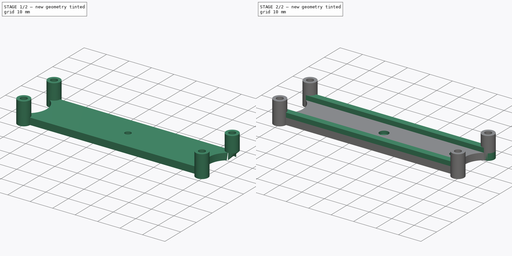
[diagram: build sequence overview — one tinted view per stage of 2, left to right]
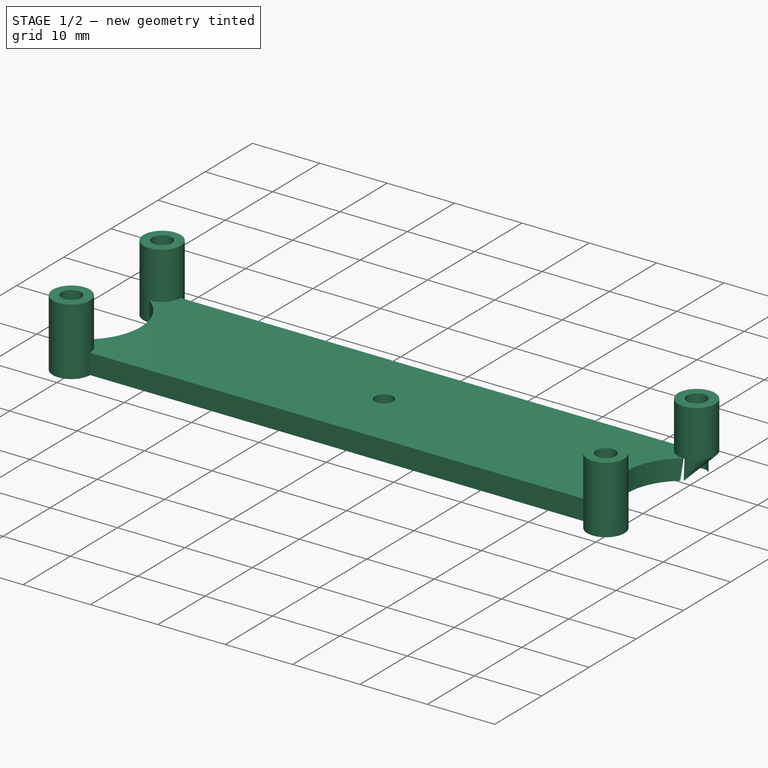
[diagram: stage 1 of 2 — iso view after this stage's code; geometry added in this stage tinted green]
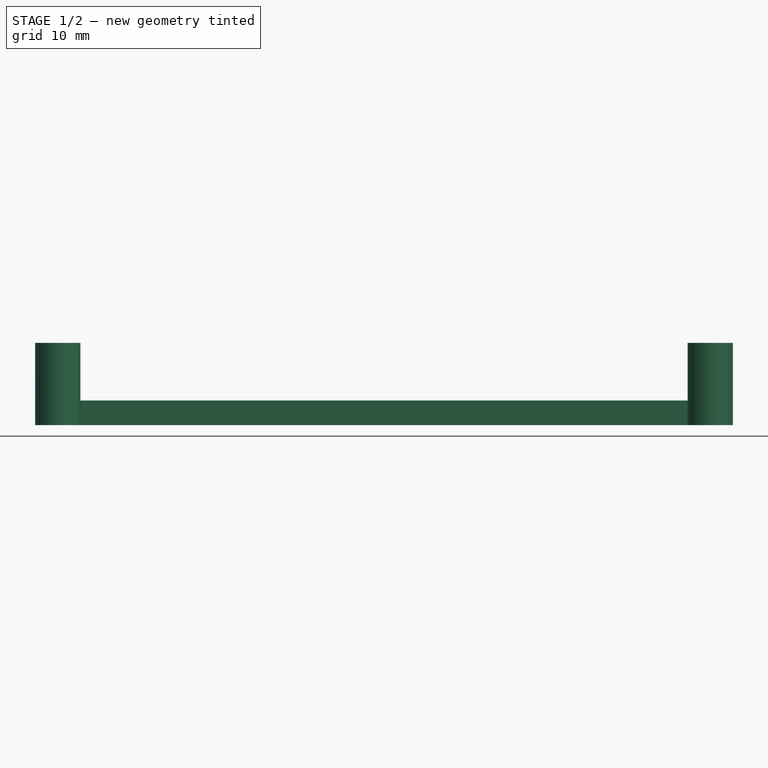
[diagram: stage 1 of 2 — front view after this stage's code; geometry added in this stage tinted green]
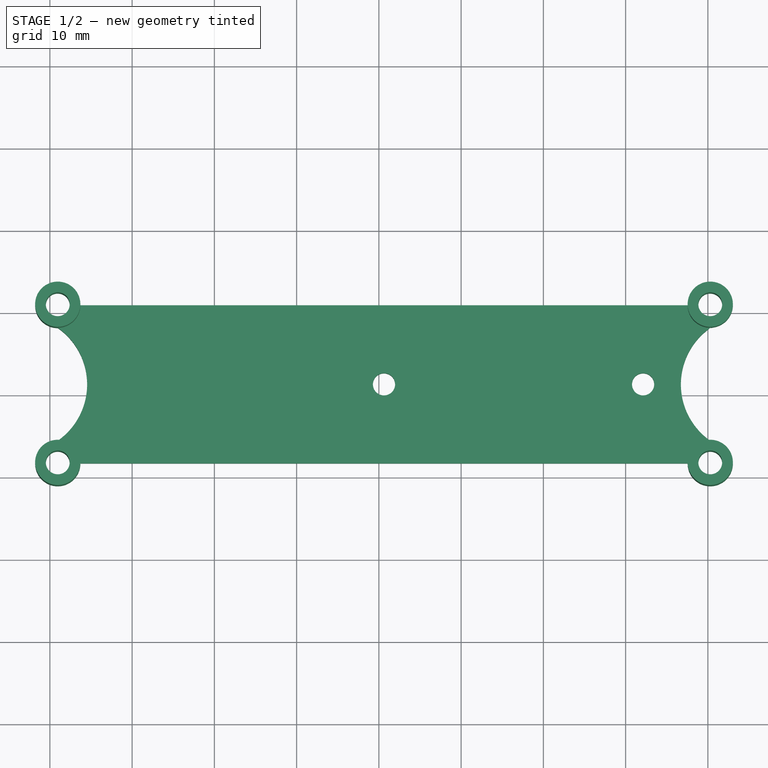
[diagram: stage 1 of 2 — top view after this stage's code; geometry added in this stage tinted green]
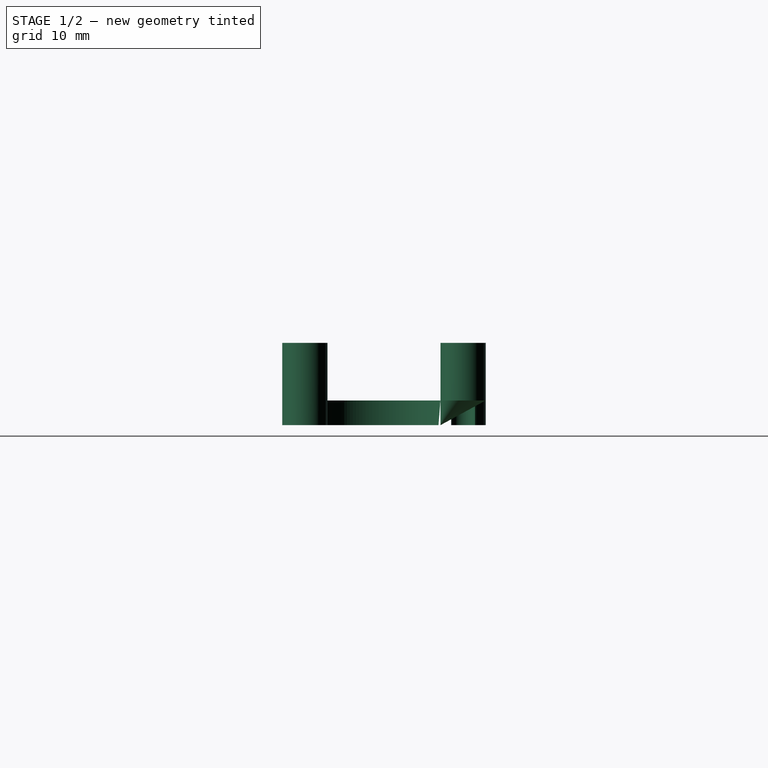
[diagram: stage 1 of 2 — right view after this stage's code; geometry added in this stage tinted green]
FCSTD DOCUMENT  (FreeCAD 0.19R24291 (Git))
Label: U2C Din Mount
License: All rights reserved
LicenseURL: http://en.wikipedia.org/wiki/All_rights_reserved
objects: Sketcher::SketchObject×4, PartDesign::Pad×3, Part::Feature×1, PartDesign::ShapeBinder×1, PartDesign::Pocket×1, PartDesign::Body×1
note: 15 computed .brp shape members not serialized (recipe doc carries the construction recipe); baked Part::Feature solids carry a one-line shape summary decoded from their .brp

FEATURE [Part::Feature] Part__Feature  label="U2C Mounting Universal"
  shape: bbox 84.83 x 26.46 x 10 mm, 97 faces (baked)
FEATURE [PartDesign::ShapeBinder] ShapeBinder
  Support = -> [Part__Feature]
  TraceSupport = false
FEATURE [Sketcher::SketchObject] Sketch
  ExternalGeometry = -> [ShapeBinder]
  FullyConstrained = true
  MapMode = 5
  Support = -> [XY_Plane]
  sketch-geometry (14):
    g0: Circle CenterX=-49.042 CenterY=40.9414 CenterZ=0 NormalX=0 NormalY=0 NormalZ=1 AngleXU=0 Radius=1.45
    g1: Circle CenterX=-49.042 CenterY=21.7114 CenterZ=0 NormalX=0 NormalY=0 NormalZ=1 AngleXU=0 Radius=1.45
    g2: Circle CenterX=30.288 CenterY=40.9414 CenterZ=0 NormalX=0 NormalY=0 NormalZ=1 AngleXU=0 Radius=1.45
    g3: Circle CenterX=30.288 CenterY=21.7114 CenterZ=0 NormalX=0 NormalY=0 NormalZ=1 AngleXU=0 Radius=1.45
    g4: ArcOfCircle CenterX=-49.042 CenterY=40.9414 CenterZ=0 NormalX=0 NormalY=0 NormalZ=1 AngleXU=0 Radius=2.75 StartAngle=1.3e-15 EndAngle=4.71239
    g5: Circle CenterX=-9.37698 CenterY=31.3264 CenterZ=0 NormalX=0 NormalY=0 NormalZ=1 AngleXU=0 Radius=1.35
    g6: Circle CenterX=22.123 CenterY=31.3264 CenterZ=0 NormalX=0 NormalY=0 NormalZ=1 AngleXU=0 Radius=1.35
    g7: ArcOfCircle CenterX=-49.042 CenterY=21.7114 CenterZ=0 NormalX=0 NormalY=0 NormalZ=1 AngleXU=0 Radius=2.75 StartAngle=1.5708 EndAngle=6.28319
    g8: ArcOfCircle CenterX=30.288 CenterY=21.7114 CenterZ=0 NormalX=0 NormalY=0 NormalZ=1 AngleXU=0 Radius=2.75 StartAngle=3.14159 EndAngle=7.85398
    g9: ArcOfCircle CenterX=30.288 CenterY=40.9414 CenterZ=0 NormalX=0 NormalY=0 NormalZ=1 AngleXU=0 Radius=2.75 StartAngle=4.71239 EndAngle=9.42478
    g10: ArcOfCircle CenterX=-53.8489 CenterY=31.3264 CenterZ=0 NormalX=0 NormalY=0 NormalZ=1 AngleXU=0 Radius=8.38062 StartAngle=5.32325 EndAngle=7.24312
    g11: ArcOfCircle CenterX=35.0949 CenterY=31.3264 CenterZ=0 NormalX=0 NormalY=0 NormalZ=1 AngleXU=0 Radius=8.38062 StartAngle=2.18166 EndAngle=4.10152
    g12: LineSegment StartX=-46.292 StartY=40.9414 StartZ=0 EndX=27.538 EndY=40.9414 EndZ=0
    g13: LineSegment StartX=27.538 StartY=21.7114 StartZ=0 EndX=-46.292 EndY=21.7114 EndZ=0
  constraints (34):
    c: Coincident(g0,g-3)
    c: PointOnObject(g-3,g0)
    c: Coincident(g1,g-4)
    c: PointOnObject(g-4,g1)
    c: Coincident(g2,g-7)
    c: PointOnObject(g-7,g2)
    c: Coincident(g3,g-8)
    c: PointOnObject(g-8,g3)
    c: Coincident(g4,g0)
    c: Coincident(g4,g-9)
    c: Angle(g4) = 4.71239
    c: Coincident(g5,g-5)
    c: PointOnObject(g-5,g5)
    c: Coincident(g6,g-6)
    c: PointOnObject(g-6,g6)
    c: Coincident(g7,g1)
    c: Coincident(g7,g-10)
    c: Coincident(g8,g3)
    c: Coincident(g8,g-11)
    c: Coincident(g9,g2)
    c: Coincident(g9,g-12)
    c: Angle(g7) = 4.71239
    c: Angle(g8) = 4.71239
    c: Angle(g9) = 4.71239
    c: Coincident(g10,g4)
    c: Coincident(g10,g7)
    c: Coincident(g11,g9)
    c: Coincident(g11,g8)
    c: Angle(g10) = 1.91986
    c: Angle(g11) = 1.91986
    c: Coincident(g12,g4)
    c: Coincident(g12,g9)
    c: Coincident(g13,g8)
    c: Coincident(g13,g7)
FEATURE [PartDesign::Pad] Pad
  Direction = (1,1,1)
  Length = 3
  Length2 = 100
  Profile = -> Sketch
  Type = 0
FEATURE [Sketcher::SketchObject] Sketch001
  ExternalGeometry = -> [ShapeBinder,Pad]
  FullyConstrained = true
  MapMode = 5
  Placement = pos=(0,0,3) rot=(0,0,1;0rad)
  Support = -> [Pad]
  sketch-geometry (8):
    g0: Circle CenterX=-49.042 CenterY=40.9414 CenterZ=0 NormalX=0 NormalY=0 NormalZ=1 AngleXU=0 Radius=2.75
    g1: Circle CenterX=-49.042 CenterY=21.7114 CenterZ=0 NormalX=0 NormalY=0 NormalZ=1 AngleXU=0 Radius=2.75
    g2: Circle CenterX=30.288 CenterY=40.9414 CenterZ=0 NormalX=0 NormalY=0 NormalZ=1 AngleXU=0 Radius=2.75
    g3: Circle CenterX=30.288 CenterY=21.7114 CenterZ=0 NormalX=0 NormalY=0 NormalZ=1 AngleXU=0 Radius=2.75
    g4: Circle CenterX=30.288 CenterY=21.7114 CenterZ=0 NormalX=0 NormalY=0 NormalZ=1 AngleXU=0 Radius=1.45
    g5: Circle CenterX=30.288 CenterY=40.9414 CenterZ=0 NormalX=0 NormalY=0 NormalZ=1 AngleXU=0 Radius=1.45
    g6: Circle CenterX=-49.042 CenterY=40.9414 CenterZ=0 NormalX=0 NormalY=0 NormalZ=1 AngleXU=0 Radius=1.45
    g7: Circle CenterX=-49.042 CenterY=21.7114 CenterZ=0 NormalX=0 NormalY=0 NormalZ=1 AngleXU=0 Radius=1.45
  constraints (16):
    c: Coincident(g0,g-4)
    c: PointOnObject(g-4,g0)
    c: Coincident(g1,g-6)
    c: PointOnObject(g-6,g1)
    c: Coincident(g2,g-10)
    c: PointOnObject(g-10,g2)
    c: Coincident(g3,g-8)
    c: PointOnObject(g-8,g3)
    c: Coincident(g4,g3)
    c: PointOnObject(g-7,g4)
    c: Coincident(g5,g2)
    c: PointOnObject(g-9,g5)
    c: Coincident(g6,g0)
    c: PointOnObject(g-3,g6)
    c: Coincident(g7,g1)
    c: Equal(g6,g7)
FEATURE [PartDesign::Pad] Pad001
  BaseFeature = -> Pad
  Direction = (1,1,1)
  Length = 7
  Length2 = 100
  Profile = -> Sketch001
  Type = 0
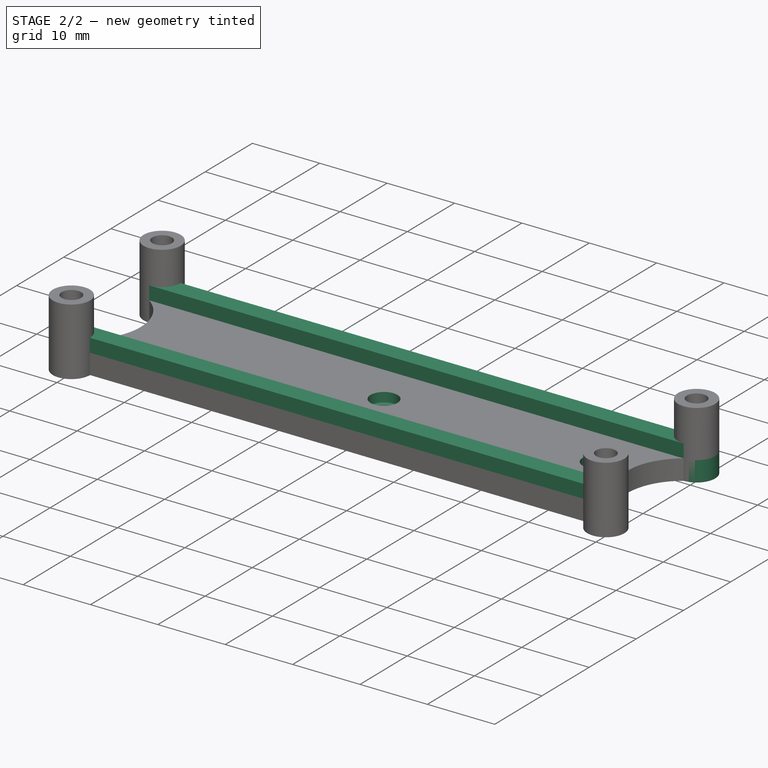
[diagram: stage 2 of 2 — iso view after this stage's code; geometry added in this stage tinted green]
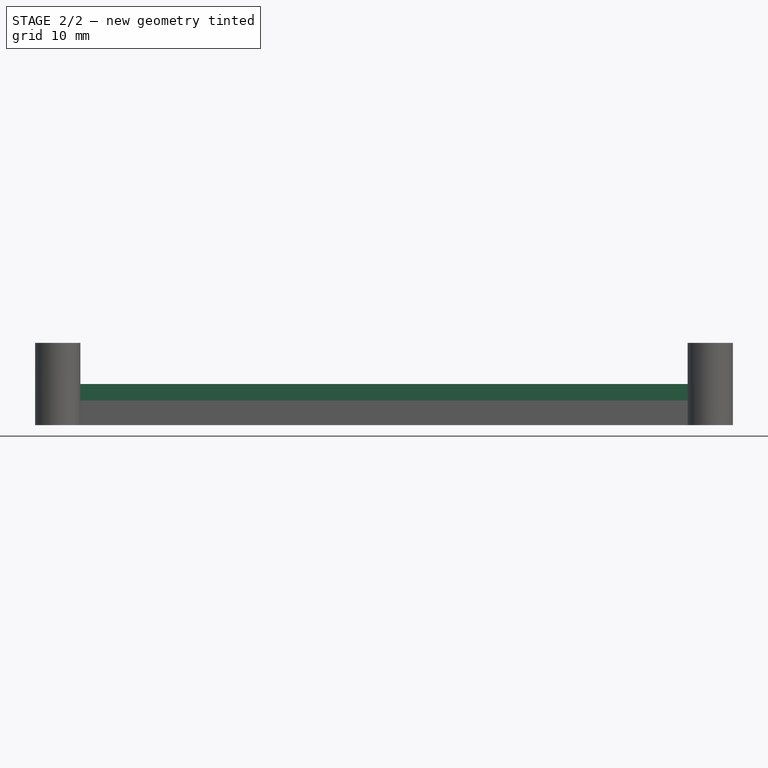
[diagram: stage 2 of 2 — front view after this stage's code; geometry added in this stage tinted green]
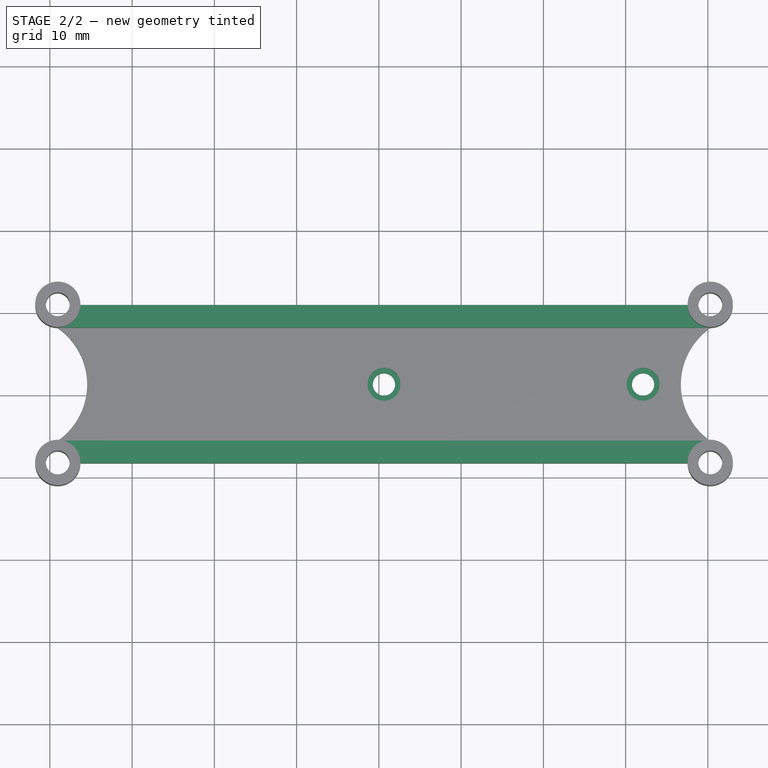
[diagram: stage 2 of 2 — top view after this stage's code; geometry added in this stage tinted green]
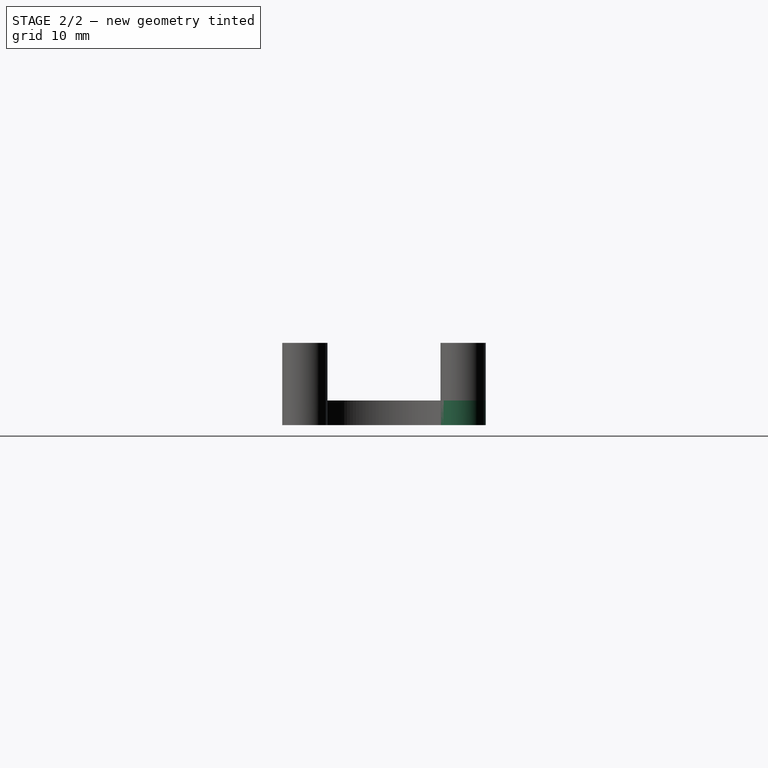
[diagram: stage 2 of 2 — right view after this stage's code; geometry added in this stage tinted green]
FEATURE [Sketcher::SketchObject] Sketch002
  ExternalGeometry = -> [ShapeBinder]
  FullyConstrained = true
  MapMode = 5
  Placement = pos=(0,0,3) rot=(0,0,1;0rad)
  Support = -> [Pad001]
  sketch-geometry (2):
    g0: Circle CenterX=-9.37698 CenterY=31.3264 CenterZ=0 NormalX=0 NormalY=0 NormalZ=1 AngleXU=0 Radius=2
    g1: Circle CenterX=22.123 CenterY=31.3264 CenterZ=0 NormalX=0 NormalY=0 NormalZ=1 AngleXU=0 Radius=2
  constraints (4):
    c: Coincident(g0,g-3)
    c: PointOnObject(g-3,g0)
    c: Coincident(g1,g-4)
    c: PointOnObject(g-4,g1)
FEATURE [PartDesign::Pocket] Pocket
  BaseFeature = -> Pad001
  Length = 1.4
  Length2 = 100
  Profile = -> Sketch002
  Type = 0
FEATURE [Sketcher::SketchObject] Sketch003
  ExternalGeometry = -> [Pocket]
  FullyConstrained = false
  MapMode = 5
  Placement = pos=(0,0,3) rot=(0,0,1;0rad)
  Support = -> [Pocket]
  sketch-geometry (8):
    g0: LineSegment StartX=-46.292 StartY=40.9414 StartZ=0 EndX=27.538 EndY=40.9414 EndZ=0
    g1: LineSegment StartX=30.288 StartY=38.1914 StartZ=0 EndX=-49.042 EndY=38.1914 EndZ=0
    g2: LineSegment StartX=-49.042 StartY=24.4614 StartZ=0 EndX=30.288 EndY=24.4614 EndZ=0
    g3: LineSegment StartX=27.538 StartY=21.7114 StartZ=0 EndX=-46.292 EndY=21.7114 EndZ=0
    g4: ArcOfCircle CenterX=-49.042 CenterY=21.7114 CenterZ=0 NormalX=0 NormalY=0 NormalZ=1 AngleXU=0 Radius=2.75 StartAngle=5.1e-15 EndAngle=1.5708
    g5: ArcOfCircle CenterX=-49.042 CenterY=40.9414 CenterZ=0 NormalX=0 NormalY=0 NormalZ=1 AngleXU=0 Radius=2.75 StartAngle=4.71239 EndAngle=6.28319
    g6: ArcOfCircle CenterX=30.288 CenterY=40.9414 CenterZ=0 NormalX=0 NormalY=0 NormalZ=1 AngleXU=0 Radius=2.75 StartAngle=3.14159 EndAngle=4.71239
    g7: ArcOfCircle CenterX=30.4172 CenterY=21.5822 CenterZ=0 NormalX=0 NormalY=0 NormalZ=1 AngleXU=0 Radius=2.88211 StartAngle=1.61564 EndAngle=3.09674
  constraints (18):
    c: Coincident(g0,g-6)
    c: Coincident(g0,g-4)
    c: Coincident(g1,g-4)
    c: Coincident(g1,g-6)
    c: Coincident(g2,g-3)
    c: Coincident(g3,g-5)
    c: Coincident(g3,g-3)
    c: Coincident(g2,g-5)
    c: Coincident(g4,g2)
    c: Coincident(g4,g3)
    c: Coincident(g5,g1)
    c: Coincident(g5,g0)
    c: Coincident(g6,g0)
    c: Coincident(g6,g1)
    c: Tangent(g6,g-4)
    c: Coincident(g7,g3)
    c: Coincident(g7,g2)
    c: Tangent(g-6,g5)
FEATURE [PartDesign::Pad] Pad002
  BaseFeature = -> Pocket
  Direction = (1,1,1)
  Length = 2
  Length2 = 100
  Profile = -> Sketch003
  Type = 0
FEATURE [PartDesign::Body] Body
  Group = -> [ShapeBinder,Sketch,Pad,Sketch001,Pad001,Sketch002,Pocket,Sketch003,Pad002]
  Origin = -> Origin
  Tip = -> Pad002
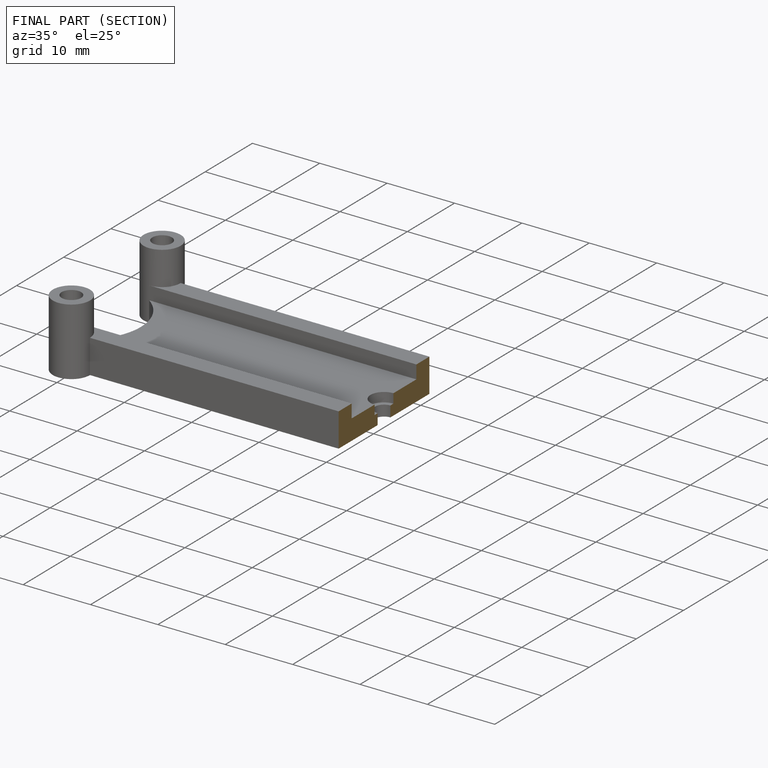
[diagram: finished part — half-section view (interior)]
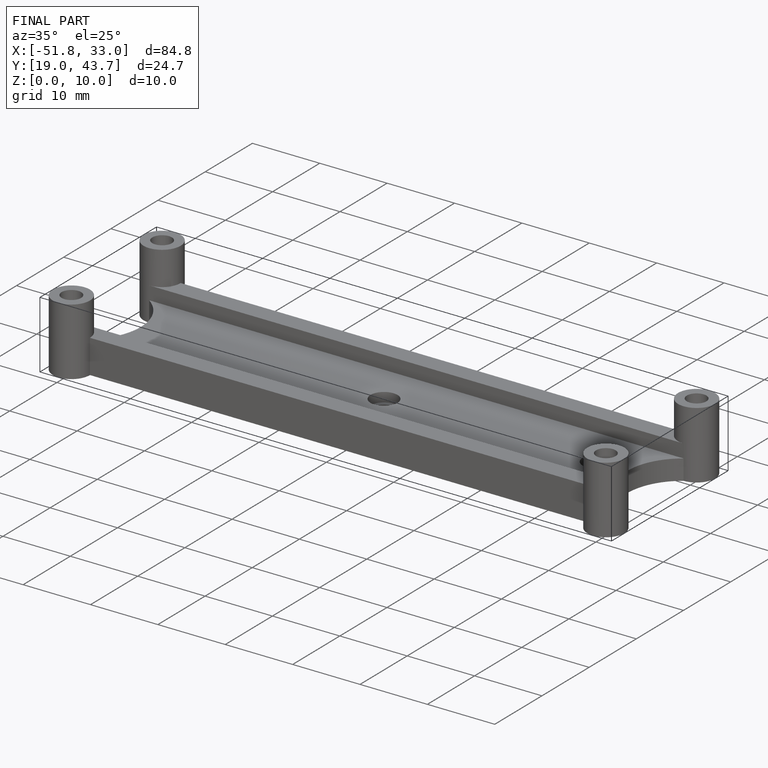
[diagram: finished part — iso view with bounding-box wireframe]
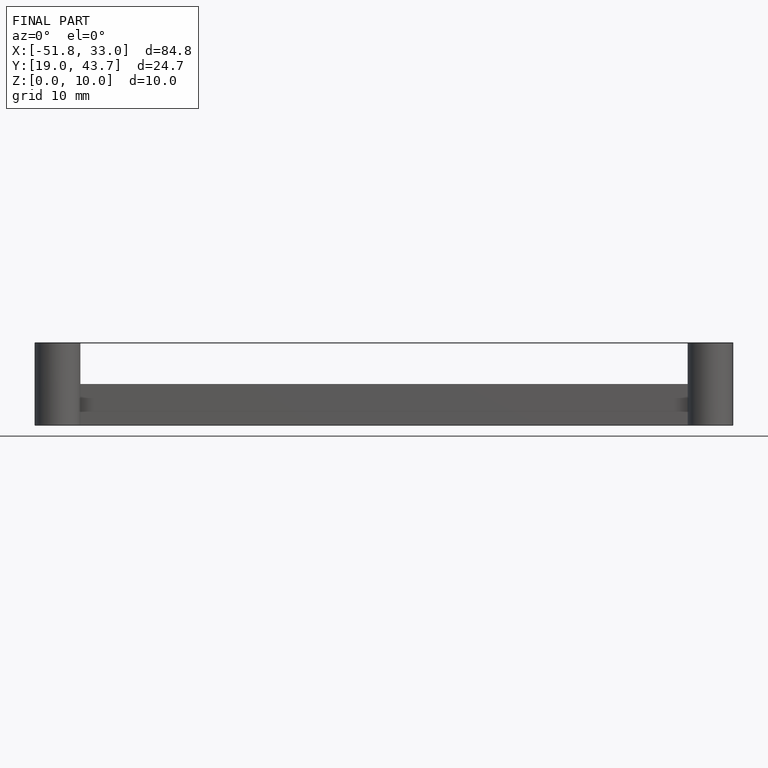
[diagram: finished part — front view with bounding-box wireframe]
